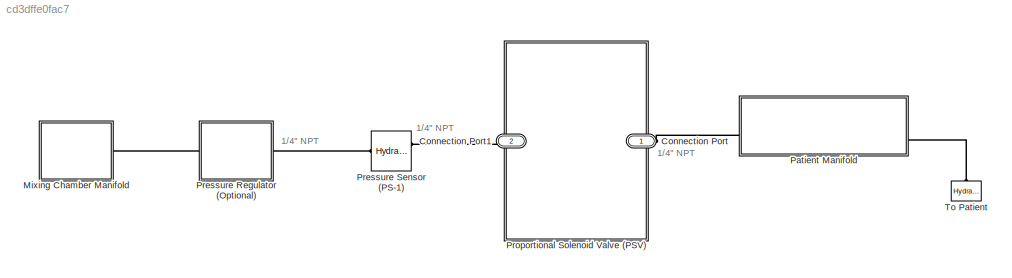
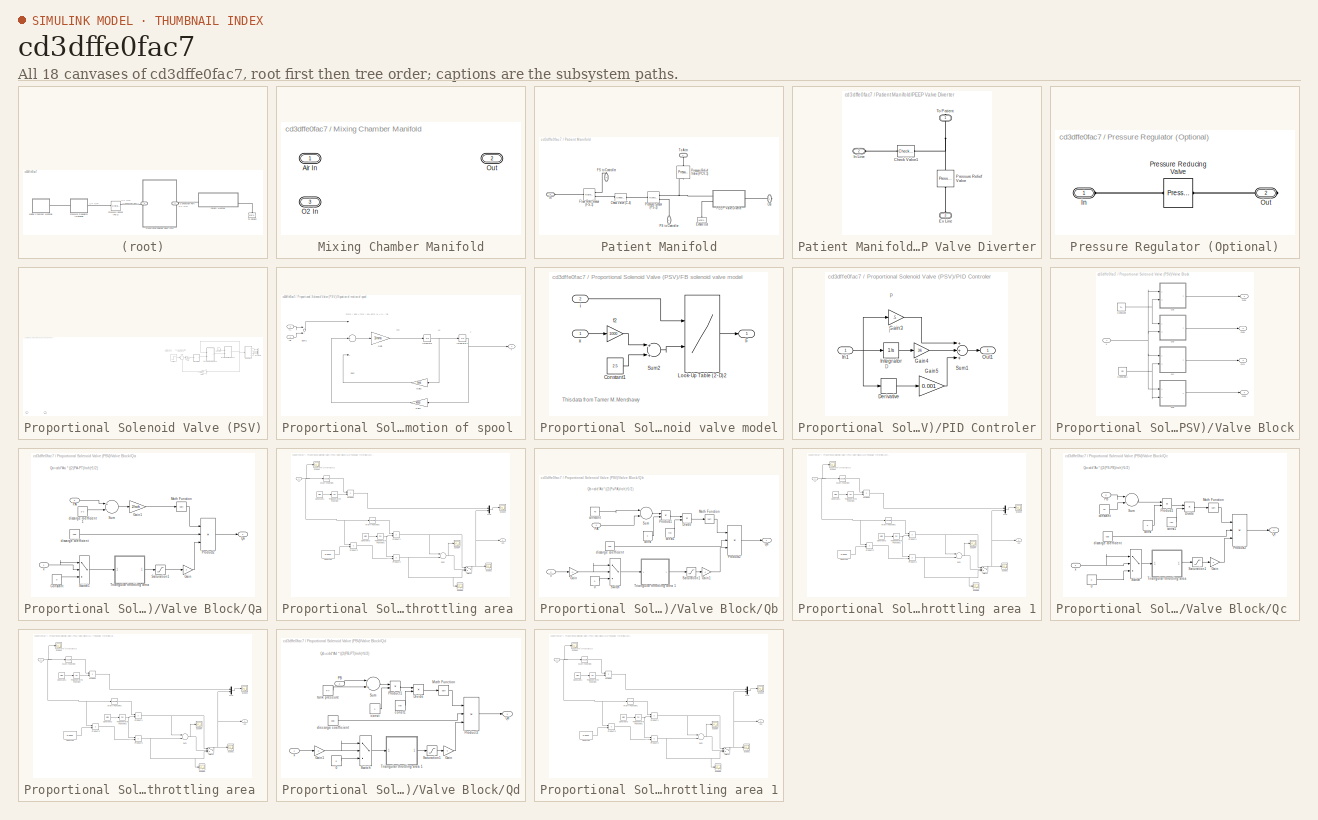
[diagram: thumbnail index - all 18 canvases of the model, root first then tree order]
MODEL slx_cd3dffe0fac7
KIND model
CONFIG AbsTol = auto
CONFIG FixedStep = auto
CONFIG MaxStep = auto
CONFIG MinStep = auto
CONFIG RelTol = 1e-3
CONFIG SampleTimeConstraint = Unconstrained
CONFIG Solver = VariableStepAuto
CONFIG SolverMode = Auto
CONFIG SolverName = VariableStepAuto
CONFIG StartTime = 0.0
CONFIG StopTime = 10.0
BLOCK [PMIOPort] Connection Port
  Port = 1
  Side = Left
BLOCK [PMIOPort] Connection Port1
  Port = 2
  Side = Right
BLOCK [SubSystem] Mixing Chamber Manifold
  Ports = [0, 0, 0, 0, 0, 2, 1]
  RequestExecContextInheritance = off
  Variant = off
BLOCK [PMIOPort] Mixing Chamber Manifold/Air In
  Port = 1
  Side = Left
BLOCK [PMIOPort] Mixing Chamber Manifold/O2 In
  Port = 3
  Side = Left
BLOCK [PMIOPort] Mixing Chamber Manifold/Out
  Port = 2
  Side = Right
BLOCK [SubSystem] Patient Manifold
  Ports = [0, 0, 0, 0, 0, 2, 3]
  RequestExecContextInheritance = off
  Variant = off
BLOCK [Reference] Patient Manifold/Check Valve (C-4)  REF=sh_lib/Valves/Directional Valves/Check Valve
  Ports = [0, 0, 0, 0, 0, 1, 1]
  SourceBlock = sh_lib/Valves/Directional Valves/Check Valve
  SourceType = Check Valve
BLOCK [Reference] Patient Manifold/Exhale Out  REF=fl_lib/Hydraulic/Hydraulic Elements/Hydraulic Reference
  Ports = [0, 0, 0, 0, 0, 1]
  SourceBlock = fl_lib/Hydraulic/Hydraulic Elements/Hydraulic Reference
  SourceType = Hydraulic Reference
BLOCK [PMIOPort] Patient Manifold/FS to Controller
  Port = 2
  Side = Right
BLOCK [Reference] Patient Manifold/Flow Rate Sensor (FS-1)  REF=fl_lib/Hydraulic/Hydraulic Sensors/Hydraulic Flow Rate
Sensor
  Ports = [0, 0, 0, 0, 0, 1, 2]
  SourceBlock = fl_lib/Hydraulic/Hydraulic Sensors/Hydraulic Flow Rate\nSensor
  SourceType = Hydraulic Flow Rate\nSensor
BLOCK [PMIOPort] Patient Manifold/In
  Port = 3
  Side = Left
BLOCK [PMIOPort] Patient Manifold/Out
  Port = 5
  Side = Right
BLOCK [SubSystem] Patient Manifold/PEEP Valve Diverter
  Ports = [0, 0, 0, 0, 0, 2, 1]
  RequestExecContextInheritance = off
  Variant = off
BLOCK [Reference] Patient Manifold/PEEP Valve Diverter/Check Valve1  REF=sh_lib/Valves/Directional Valves/Check Valve
  Ports = [0, 0, 0, 0, 0, 1, 1]
  SourceBlock = sh_lib/Valves/Directional Valves/Check Valve
  SourceType = Check Valve
BLOCK [PMIOPort] Patient Manifold/PEEP Valve Diverter/Ex Line
  Port = 3
  Side = Left
BLOCK [PMIOPort] Patient Manifold/PEEP Valve Diverter/In Line
  Port = 2
  Side = Left
BLOCK [Reference] Patient Manifold/PEEP Valve Diverter/Pressure Relief Valve  REF=sh_lib/Valves/Pressure Control
Valves/Pressure Relief
Valve
  Ports = [0, 0, 0, 0, 0, 1, 1]
  SourceBlock = sh_lib/Valves/Pressure Control\nValves/Pressure Relief\nValve
  SourceType = Pressure Relief\nValve
BLOCK [PMIOPort] Patient Manifold/PEEP Valve Diverter/To Patient
  Port = 1
  Side = Right
BLOCK [PMIOPort] Patient Manifold/PS to Controller
  Port = 4
  Side = Right
BLOCK [Reference] Patient Manifold/Pressure Relief Valve (PCV-1)  REF=sh_lib/Valves/Pressure Control
Valves/Pressure Relief
Valve
  Ports = [0, 0, 0, 0, 0, 1, 1]
  SourceBlock = sh_lib/Valves/Pressure Control\nValves/Pressure Relief\nValve
  SourceType = Pressure Relief\nValve
BLOCK [Reference] Patient Manifold/Pressure Sensor (PS-2)  REF=fl_lib/Hydraulic/Hydraulic Sensors/Hydraulic Pressure
Sensor
  Ports = [0, 0, 0, 0, 0, 1, 2]
  SourceBlock = fl_lib/Hydraulic/Hydraulic Sensors/Hydraulic Pressure\nSensor
  SourceType = Hydraulic Pressure\nSensor
BLOCK [PMIOPort] Patient Manifold/To Atm
  Port = 1
  Side = Left
BLOCK [SubSystem] Pressure Regulator (Optional)
  Ports = [0, 0, 0, 0, 0, 1, 1]
  RequestExecContextInheritance = off
  Variant = off
BLOCK [PMIOPort] Pressure Regulator (Optional)/In
  Port = 1
  Side = Left
BLOCK [PMIOPort] Pressure Regulator (Optional)/Out
  Port = 2
  Side = Right
BLOCK [Reference] Pressure Regulator (Optional)/Pressure Reducing Valve  REF=sh_lib/Valves/Pressure Control
Valves/Pressure Reducing
Valve
  Ports = [0, 0, 0, 0, 0, 1, 1]
  SourceBlock = sh_lib/Valves/Pressure Control\nValves/Pressure Reducing\nValve
  SourceType = Pressure Reducing\nValve
BLOCK [Reference] Pressure Sensor (PS-1)  REF=fl_lib/Hydraulic/Hydraulic Sensors/Hydraulic Pressure
Sensor
  Ports = [0, 0, 0, 0, 0, 1, 2]
  SourceBlock = fl_lib/Hydraulic/Hydraulic Sensors/Hydraulic Pressure\nSensor
  SourceType = Hydraulic Pressure\nSensor
BLOCK [SubSystem] Proportional Solenoid Valve (PSV)
  Ports = [1, 1]
  RequestExecContextInheritance = off
  Variant = off
  VariantControl = Variant1
BLOCK [BusCreator] Proportional Solenoid Valve (PSV)/Bus Creator
  DisplayOption = bar
  InheritFromInputs = on
  Inputs = 4
  Ports = [4, 1]
BLOCK [Constant] Proportional Solenoid Valve (PSV)/Constant
  Value = 0
BLOCK [SubSystem] Proportional Solenoid Valve (PSV)/Equation of motion of spool 
  Ports = [2, 1]
  RequestExecContextInheritance = off
  Variant = off
BLOCK [Gain] Proportional Solenoid Valve (PSV)/Equation of motion of spool /Gain
  Gain = 1/mms
  OutDataTypeStr = Inherit: Inherit via internal rule
  ParamDataTypeStr = Inherit: Inherit via internal rule
  SaturateOnIntegerOverflow = off
BLOCK [Gain] Proportional Solenoid Valve (PSV)/Equation of motion of spool /Gain1
  Gain = kms
  OutDataTypeStr = Inherit: Inherit via internal rule
  ParamDataTypeStr = Inherit: Inherit via internal rule
  SaturateOnIntegerOverflow = off
BLOCK [Gain] Proportional Solenoid Valve (PSV)/Equation of motion of spool /Gain2
  Gain = fms
  OutDataTypeStr = Inherit: Inherit via internal rule
  ParamDataTypeStr = Inherit: Inherit via internal rule
  SaturateOnIntegerOverflow = off
BLOCK [Integrator] Proportional Solenoid Valve (PSV)/Equation of motion of spool /Integrator
  Ports = [1, 1]
BLOCK [Integrator] Proportional Solenoid Valve (PSV)/Equation of motion of spool /Integrator1
  Ports = [1, 1]
BLOCK [Sum] Proportional Solenoid Valve (PSV)/Equation of motion of spool /Sum
  InputSameDT = off
  Inputs = |+--
  OutDataTypeStr = Inherit: Inherit via internal rule
  Ports = [3, 1]
  SaturateOnIntegerOverflow = off
BLOCK [Sum] Proportional Solenoid Valve (PSV)/Equation of motion of spool /Sum1
  InputSameDT = off
  Inputs = |+-
  OutDataTypeStr = Inherit: Inherit via internal rule
  Ports = [2, 1]
  SaturateOnIntegerOverflow = off
BLOCK [Inport] Proportional Solenoid Valve (PSV)/Equation of motion of spool /fA
  IconDisplay = Port number
  Port = 2
BLOCK [Inport] Proportional Solenoid Valve (PSV)/Equation of motion of spool /fB
  IconDisplay = Port number
BLOCK [Outport] Proportional Solenoid Valve (PSV)/Equation of motion of spool /x
  IconDisplay = Port number
BLOCK [SubSystem] Proportional Solenoid Valve (PSV)/FB solenoid valve model
  Ports = [2, 1]
  RequestExecContextInheritance = off
  Variant = off
BLOCK [Constant] Proportional Solenoid Valve (PSV)/FB solenoid valve model/Constant1
  Value = 2.5
BLOCK [Outport] Proportional Solenoid Valve (PSV)/FB solenoid valve model/F
  IconDisplay = Port number
BLOCK [Lookup2D] Proportional Solenoid Valve (PSV)/FB solenoid valve model/Look-Up Table (2-D)2
  ColumnIndex = [1 2 3 4 5]
  InputSameDT = off
  RowIndex = [0.1 0.15 0.2 0.25 0.3 0.35 0.4 0.45 0.5 0.55 0.6 0.65 0.7 0.75 0.8]
  Table = [0 0 0 0 0; 0 0 0 0 0; 0 0 3.32 5.39 11.27; 0.31 1.65 6.12 11.64 15.98; 1.44 3.06 9.05 17.58 20.43; 2.56 4.23 11.14 21.53 24.09; 4.03 5.41 13.45 25.17 28.62; 5.39 7.12 16.87 28.75 32.52; 6.3 8.74 19.51 32.25 36.91; 7.77 10.31 21.9 35.86 40.36; 8.82 11.95 24.54 39.27 44.63; 9.73 13.81 27.1 43.06 48.68; 11.06 15.54 29.66 46.33 52.61; 12.84 17.58 31.52 49.05 55.75; 14.15 19.85 32.8 51.82 59.93]
BLOCK [Sum] Proportional Solenoid Valve (PSV)/FB solenoid valve model/Sum2
  InputSameDT = off
  OutDataTypeStr = Inherit: Inherit via internal rule
  Ports = [2, 1]
BLOCK [Gain] Proportional Solenoid Valve (PSV)/FB solenoid valve model/f2
  Gain = 1000
BLOCK [Inport] Proportional Solenoid Valve (PSV)/FB solenoid valve model/i
  IconDisplay = Port number
  Port = 2
BLOCK [Inport] Proportional Solenoid Valve (PSV)/FB solenoid valve model/x
  IconDisplay = Port number
BLOCK [Gain] Proportional Solenoid Valve (PSV)/Gain
  Gain = .15
  OutDataTypeStr = Inherit: Inherit via internal rule
  ParamDataTypeStr = Inherit: Inherit via internal rule
  SaturateOnIntegerOverflow = off
BLOCK [Gain] Proportional Solenoid Valve (PSV)/Gain1
  Gain = 2290
  OutDataTypeStr = Inherit: Inherit via internal rule
  ParamDataTypeStr = Inherit: Inherit via internal rule
  SaturateOnIntegerOverflow = off
BLOCK [Inport] Proportional Solenoid Valve (PSV)/In1
  IconDisplay = Port number
BLOCK [Outport] Proportional Solenoid Valve (PSV)/Out1
  IconDisplay = Port number
BLOCK [SubSystem] Proportional Solenoid Valve (PSV)/PID Controler
  Ports = [1, 1]
  RequestExecContextInheritance = off
  Variant = off
BLOCK [Derivative] Proportional Solenoid Valve (PSV)/PID Controler/Derivative
BLOCK [Gain] Proportional Solenoid Valve (PSV)/PID Controler/Gain3
  Gain = .5
  OutDataTypeStr = Inherit: Inherit via internal rule
  ParamDataTypeStr = Inherit: Inherit via internal rule
  SaturateOnIntegerOverflow = off
BLOCK [Gain] Proportional Solenoid Valve (PSV)/PID Controler/Gain4
  Gain = 36
  OutDataTypeStr = Inherit: Inherit via internal rule
  ParamDataTypeStr = Inherit: Inherit via internal rule
  SaturateOnIntegerOverflow = off
BLOCK [Gain] Proportional Solenoid Valve (PSV)/PID Controler/Gain5
  Gain = 0.001
  OutDataTypeStr = Inherit: Inherit via internal rule
  ParamDataTypeStr = Inherit: Inherit via internal rule
  SaturateOnIntegerOverflow = off
BLOCK [Inport] Proportional Solenoid Valve (PSV)/PID Controler/In1
  IconDisplay = Port number
BLOCK [Integrator] Proportional Solenoid Valve (PSV)/PID Controler/Integrator
  Ports = [1, 1]
BLOCK [Outport] Proportional Solenoid Valve (PSV)/PID Controler/Out1
  IconDisplay = Port number
BLOCK [Sum] Proportional Solenoid Valve (PSV)/PID Controler/Sum1
  InputSameDT = off
  Inputs = +++
  OutDataTypeStr = Inherit: Inherit via internal rule
  Ports = [3, 1]
  SaturateOnIntegerOverflow = off
BLOCK [Step] Proportional Solenoid Valve (PSV)/Step
  After = 4.8
  SampleTime = 0
  Time = 0
BLOCK [Sum] Proportional Solenoid Valve (PSV)/Sum
  IconShape = round
  InputSameDT = off
  Inputs = |+-
  OutDataTypeStr = Inherit: Inherit via internal rule
  Ports = [2, 1]
  SaturateOnIntegerOverflow = off
BLOCK [SubSystem] Proportional Solenoid Valve (PSV)/Valve Block
  Ports = [1, 4]
  RequestExecContextInheritance = off
  Variant = off
BLOCK [Constant] Proportional Solenoid Valve (PSV)/Valve Block/Constant
  Value = PA
BLOCK [Constant] Proportional Solenoid Valve (PSV)/Valve Block/Constant1
  Value = PB
BLOCK [SubSystem] Proportional Solenoid Valve (PSV)/Valve Block/Qa
  Ports = [2, 1]
  RequestExecContextInheritance = off
  Variant = off
BLOCK [Constant] Proportional Solenoid Valve (PSV)/Valve Block/Qa/Constant
  Value = 0
BLOCK [Gain] Proportional Solenoid Valve (PSV)/Valve Block/Qa/Gain
  Gain = 4
  OutDataTypeStr = Inherit: Inherit via internal rule
  ParamDataTypeStr = Inherit: Inherit via internal rule
  SaturateOnIntegerOverflow = off
BLOCK [Gain] Proportional Solenoid Valve (PSV)/Valve Block/Qa/Gain1
  Gain = 2/roh
  OutDataTypeStr = Inherit: Inherit via internal rule
  ParamDataTypeStr = Inherit: Inherit via internal rule
  SaturateOnIntegerOverflow = off
BLOCK [Math] Proportional Solenoid Valve (PSV)/Valve Block/Qa/Math Function
  Operator = sqrt
  Ports = [1, 1]
BLOCK [Inport] Proportional Solenoid Valve (PSV)/Valve Block/Qa/PA
  IconDisplay = Port number
  Port = 2
BLOCK [Product] Proportional Solenoid Valve (PSV)/Valve Block/Qa/Product2
  InputSameDT = off
  Inputs = 3
  OutDataTypeStr = Inherit: Inherit via internal rule
  Ports = [3, 1]
  SaturateOnIntegerOverflow = off
BLOCK [Outport] Proportional Solenoid Valve (PSV)/Valve Block/Qa/Qa
  IconDisplay = Port number
BLOCK [Saturate] Proportional Solenoid Valve (PSV)/Valve Block/Qa/Saturation1
  InputPortMap = u0
  LowerLimit = cl
  Ports = [1, 1]
  UpperLimit = 1
BLOCK [Sum] Proportional Solenoid Valve (PSV)/Valve Block/Qa/Sum
  InputSameDT = off
  Inputs = +-
  OutDataTypeStr = Inherit: Inherit via internal rule
  Ports = [2, 1]
  SaturateOnIntegerOverflow = off
BLOCK [Switch] Proportional Solenoid Valve (PSV)/Valve Block/Qa/Switch1
  InputSameDT = off
  SaturateOnIntegerOverflow = off
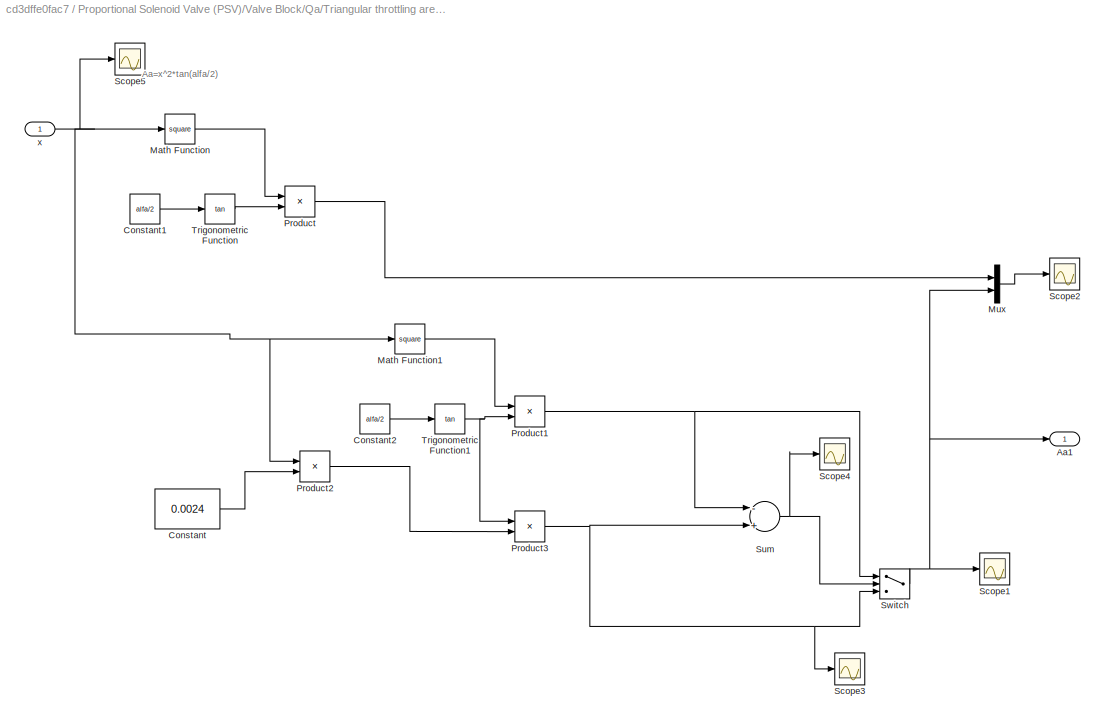
BLOCK [SubSystem] Proportional Solenoid Valve (PSV)/Valve Block/Qa/Triangular throttling area 
  Ports = [1, 1]
  RequestExecContextInheritance = off
  Variant = off
BLOCK [Outport] Proportional Solenoid Valve (PSV)/Valve Block/Qa/Triangular throttling area /Aa1
  IconDisplay = Port number
BLOCK [Constant] Proportional Solenoid Valve (PSV)/Valve Block/Qa/Triangular throttling area /Constant
  Value = 0.0024
BLOCK [Constant] Proportional Solenoid Valve (PSV)/Valve Block/Qa/Triangular throttling area /Constant1
  Value = alfa/2
BLOCK [Constant] Proportional Solenoid Valve (PSV)/Valve Block/Qa/Triangular throttling area /Constant2
  Value = alfa/2
BLOCK [Math] Proportional Solenoid Valve (PSV)/Valve Block/Qa/Triangular throttling area /Math Function
  Operator = square
  Ports = [1, 1]
BLOCK [Math] Proportional Solenoid Valve (PSV)/Valve Block/Qa/Triangular throttling area /Math Function1
  Operator = square
  Ports = [1, 1]
BLOCK [Mux] Proportional Solenoid Valve (PSV)/Valve Block/Qa/Triangular throttling area /Mux
  DisplayOption = bar
  Inputs = 2
  Ports = [2, 1]
BLOCK [Product] Proportional Solenoid Valve (PSV)/Valve Block/Qa/Triangular throttling area /Product
  InputSameDT = off
  OutDataTypeStr = Inherit: Inherit via internal rule
  Ports = [2, 1]
  SaturateOnIntegerOverflow = off
BLOCK [Product] Proportional Solenoid Valve (PSV)/Valve Block/Qa/Triangular throttling area /Product1
  InputSameDT = off
  OutDataTypeStr = Inherit: Inherit via internal rule
  Ports = [2, 1]
  SaturateOnIntegerOverflow = off
BLOCK [Product] Proportional Solenoid Valve (PSV)/Valve Block/Qa/Triangular throttling area /Product2
  InputSameDT = off
  OutDataTypeStr = Inherit: Inherit via internal rule
  Ports = [2, 1]
  SaturateOnIntegerOverflow = off
BLOCK [Product] Proportional Solenoid Valve (PSV)/Valve Block/Qa/Triangular throttling area /Product3
  InputSameDT = off
  OutDataTypeStr = Inherit: Inherit via internal rule
  Ports = [2, 1]
  SaturateOnIntegerOverflow = off
BLOCK [Scope] Proportional Solenoid Valve (PSV)/Valve Block/Qa/Triangular throttling area /Scope1
  Ports = [1]
  ScopeSpecificationString = C++SS(StrPVP('Location','[5, 56, 1285, 803]'),StrPVP('Open','off'),MxPVP('AxesTitles',24,'struct(''axes1'',''%<SignalLabel>'')'),StrPVP('SaveName','ScopeData13'),StrPVP('DataFormat','StructureWithTime'),StrPVP('BlockParamSampleTime','0'),StrPVP('LimitDataPoints','on'),StrPVP('Decimation','1'),StrPVP('BlockParamSampleInput','off'))  <repeated x4 — deduplicated; at blocks: Scope1>
BLOCK [Scope] Proportional Solenoid Valve (PSV)/Valve Block/Qa/Triangular throttling area /Scope2
  Ports = [1]
  ScopeSpecificationString = C++SS(StrPVP('Location','[5, 56, 1285, 803]'),StrPVP('Open','off'),StrPVP('ZoomMode','yonly'),MxPVP('AxesTitles',24,'struct(''axes1'',''%<SignalLabel>'')'),StrPVP('SaveName','ScopeData12'),StrPVP('DataFormat','StructureWithTime'),StrPVP('BlockParamSampleTime','0'),StrPVP('LimitDataPoints','on'),StrPVP('Decimation','1'),StrPVP('BlockParamSampleInput','off'))  <repeated x4 — deduplicated; at blocks: Scope2>
BLOCK [Scope] Proportional Solenoid Valve (PSV)/Valve Block/Qa/Triangular throttling area /Scope3
  Ports = [1]
  ScopeSpecificationString = C++SS(StrPVP('Location','[5, 56, 1285, 803]'),StrPVP('Open','off'),MxPVP('AxesTitles',24,'struct(''axes1'',''%<SignalLabel>'')'),StrPVP('SaveName','ScopeData9'),StrPVP('DataFormat','StructureWithTime'),StrPVP('BlockParamSampleTime','0'),StrPVP('LimitDataPoints','on'),StrPVP('Decimation','1'),StrPVP('BlockParamSampleInput','off'))  <repeated x4 — deduplicated; at blocks: Scope3>
BLOCK [Scope] Proportional Solenoid Valve (PSV)/Valve Block/Qa/Triangular throttling area /Scope4
  Ports = [1]
  ScopeSpecificationString = C++SS(StrPVP('Location','[5, 56, 1285, 803]'),StrPVP('Open','off'),MxPVP('AxesTitles',24,'struct(''axes1'',''%<SignalLabel>'')'),StrPVP('YMin','5e-008'),StrPVP('YMax','5.25e-007'),StrPVP('SaveName','ScopeData18'),StrPVP('DataFormat','StructureWithTime'),StrPVP('BlockParamSampleTime','0'),StrPVP('LimitDataPoints','on'),StrPVP('Decimation','1'),StrPVP('BlockParamSampleInput','off'))  <repeated x4 — deduplicated; at blocks: Scope4>
BLOCK [Scope] Proportional Solenoid Valve (PSV)/Valve Block/Qa/Triangular throttling area /Scope5
  Ports = [1]
  ScopeSpecificationString = C++SS(StrPVP('Location','[5, 56, 1285, 803]'),StrPVP('Open','off'),StrPVP('ZoomMode','yonly'),MxPVP('AxesTitles',24,'struct(''axes1'',''%<SignalLabel>'')'),StrPVP('SaveName','ScopeData19'),StrPVP('DataFormat','StructureWithTime'),StrPVP('BlockParamSampleTime','0'),StrPVP('LimitDataPoints','on'),StrPVP('Decimation','1'),StrPVP('BlockParamSampleInput','off'))  <repeated x4 — deduplicated; at blocks: Scope5>
BLOCK [Sum] Proportional Solenoid Valve (PSV)/Valve Block/Qa/Triangular throttling area /Sum
  InputSameDT = off
  Inputs = -+
  OutDataTypeStr = Inherit: Inherit via internal rule
  Ports = [2, 1]
  SaturateOnIntegerOverflow = off
BLOCK [Switch] Proportional Solenoid Valve (PSV)/Valve Block/Qa/Triangular throttling area /Switch
  InputSameDT = off
  SaturateOnIntegerOverflow = off
BLOCK [Trigonometry] Proportional Solenoid Valve (PSV)/Valve Block/Qa/Triangular throttling area /Trigonometric Function
  Operator = tan
  Ports = [1, 1]
BLOCK [Trigonometry] Proportional Solenoid Valve (PSV)/Valve Block/Qa/Triangular throttling area /Trigonometric Function1
  Operator = tan
  Ports = [1, 1]
BLOCK [Inport] Proportional Solenoid Valve (PSV)/Valve Block/Qa/Triangular throttling area /x
  IconDisplay = Port number
BLOCK [Constant] Proportional Solenoid Valve (PSV)/Valve Block/Qa/discarge coefficient
  Value = cdd
BLOCK [Constant] Proportional Solenoid Valve (PSV)/Valve Block/Qa/discarge coefficient1
  Value = PT
BLOCK [Inport] Proportional Solenoid Valve (PSV)/Valve Block/Qa/x
  IconDisplay = Port number
BLOCK [Outport] Proportional Solenoid Valve (PSV)/Valve Block/Qa1
  IconDisplay = Port number
BLOCK [SubSystem] Proportional Solenoid Valve (PSV)/Valve Block/Qb
  Ports = [2, 1]
  RequestExecContextInheritance = off
  Variant = off
BLOCK [Constant] Proportional Solenoid Valve (PSV)/Valve Block/Qb/0
  Value = 0
BLOCK [Product] Proportional Solenoid Valve (PSV)/Valve Block/Qb/Divide
  InputSameDT = off
  Inputs = */
  OutDataTypeStr = Inherit: Inherit via internal rule
  Ports = [2, 1]
  RndMeth = Floor
  SaturateOnIntegerOverflow = off
BLOCK [Gain] Proportional Solenoid Valve (PSV)/Valve Block/Qb/Gain
  Gain = -1
  OutDataTypeStr = Inherit: Inherit via internal rule
  ParamDataTypeStr = Inherit: Inherit via internal rule
  SaturateOnIntegerOverflow = off
BLOCK [Gain] Proportional Solenoid Valve (PSV)/Valve Block/Qb/Gain1
  Gain = 4
  OutDataTypeStr = Inherit: Inherit via internal rule
  ParamDataTypeStr = Inherit: Inherit via internal rule
  SaturateOnIntegerOverflow = off
BLOCK [Math] Proportional Solenoid Valve (PSV)/Valve Block/Qb/Math Function
  Operator = sqrt
  Ports = [1, 1]
BLOCK [Inport] Proportional Solenoid Valve (PSV)/Valve Block/Qb/PA
  IconDisplay = Port number
BLOCK [Product] Proportional Solenoid Valve (PSV)/Valve Block/Qb/Product1
  InputSameDT = off
  OutDataTypeStr = Inherit: Inherit via internal rule
  Ports = [2, 1]
  SaturateOnIntegerOverflow = off
BLOCK [Product] Proportional Solenoid Valve (PSV)/Valve Block/Qb/Product2
  InputSameDT = off
  Inputs = 3
  OutDataTypeStr = Inherit: Inherit via internal rule
  Ports = [3, 1]
  SaturateOnIntegerOverflow = off
BLOCK [Outport] Proportional Solenoid Valve (PSV)/Valve Block/Qb/Qb
  IconDisplay = Port number
BLOCK [Saturate] Proportional Solenoid Valve (PSV)/Valve Block/Qb/Saturation1
  InputPortMap = u0
  LowerLimit = cl
  Ports = [1, 1]
BLOCK [Sum] Proportional Solenoid Valve (PSV)/Valve Block/Qb/Sum
  InputSameDT = off
  Inputs = |+-
  OutDataTypeStr = Inherit: Inherit via internal rule
  Ports = [2, 1]
  SaturateOnIntegerOverflow = off
BLOCK [Switch] Proportional Solenoid Valve (PSV)/Valve Block/Qb/Switch
  InputSameDT = off
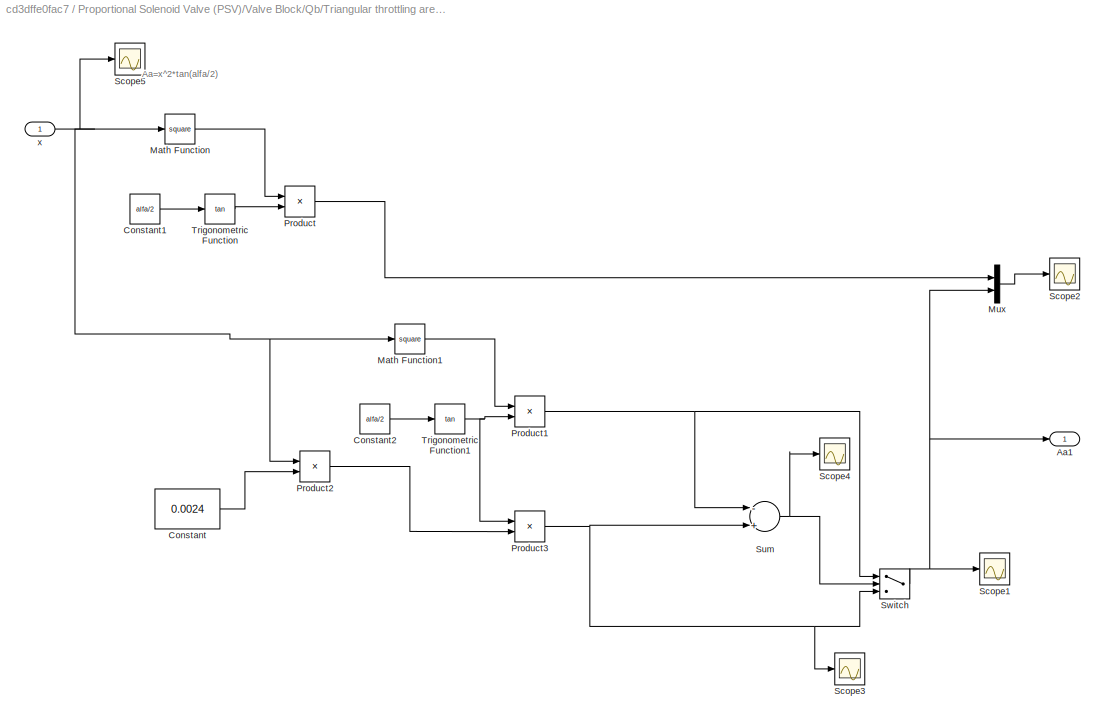
BLOCK [SubSystem] Proportional Solenoid Valve (PSV)/Valve Block/Qb/Triangular throttling area 1
  Ports = [1, 1]
  RequestExecContextInheritance = off
  Variant = off
BLOCK [Outport] Proportional Solenoid Valve (PSV)/Valve Block/Qb/Triangular throttling area 1/Aa1
  IconDisplay = Port number
BLOCK [Constant] Proportional Solenoid Valve (PSV)/Valve Block/Qb/Triangular throttling area 1/Constant
  Value = 0.0024
BLOCK [Constant] Proportional Solenoid Valve (PSV)/Valve Block/Qb/Triangular throttling area 1/Constant1
  Value = alfa/2
BLOCK [Constant] Proportional Solenoid Valve (PSV)/Valve Block/Qb/Triangular throttling area 1/Constant2
  Value = alfa/2
BLOCK [Math] Proportional Solenoid Valve (PSV)/Valve Block/Qb/Triangular throttling area 1/Math Function
  Operator = square
  Ports = [1, 1]
BLOCK [Math] Proportional Solenoid Valve (PSV)/Valve Block/Qb/Triangular throttling area 1/Math Function1
  Operator = square
  Ports = [1, 1]
BLOCK [Mux] Proportional Solenoid Valve (PSV)/Valve Block/Qb/Triangular throttling area 1/Mux
  DisplayOption = bar
  Inputs = 2
  Ports = [2, 1]
BLOCK [Product] Proportional Solenoid Valve (PSV)/Valve Block/Qb/Triangular throttling area 1/Product
  InputSameDT = off
  OutDataTypeStr = Inherit: Inherit via internal rule
  Ports = [2, 1]
  SaturateOnIntegerOverflow = off
BLOCK [Product] Proportional Solenoid Valve (PSV)/Valve Block/Qb/Triangular throttling area 1/Product1
  InputSameDT = off
  OutDataTypeStr = Inherit: Inherit via internal rule
  Ports = [2, 1]
  SaturateOnIntegerOverflow = off
BLOCK [Product] Proportional Solenoid Valve (PSV)/Valve Block/Qb/Triangular throttling area 1/Product2
  InputSameDT = off
  OutDataTypeStr = Inherit: Inherit via internal rule
  Ports = [2, 1]
  SaturateOnIntegerOverflow = off
BLOCK [Product] Proportional Solenoid Valve (PSV)/Valve Block/Qb/Triangular throttling area 1/Product3
  InputSameDT = off
  OutDataTypeStr = Inherit: Inherit via internal rule
  Ports = [2, 1]
  SaturateOnIntegerOverflow = off
BLOCK [Scope] Proportional Solenoid Valve (PSV)/Valve Block/Qb/Triangular throttling area 1/Scope1
  Ports = [1]
BLOCK [Scope] Proportional Solenoid Valve (PSV)/Valve Block/Qb/Triangular throttling area 1/Scope2
  Ports = [1]
BLOCK [Scope] Proportional Solenoid Valve (PSV)/Valve Block/Qb/Triangular throttling area 1/Scope3
  Ports = [1]
BLOCK [Scope] Proportional Solenoid Valve (PSV)/Valve Block/Qb/Triangular throttling area 1/Scope4
  Ports = [1]
BLOCK [Scope] Proportional Solenoid Valve (PSV)/Valve Block/Qb/Triangular throttling area 1/Scope5
  Ports = [1]
BLOCK [Sum] Proportional Solenoid Valve (PSV)/Valve Block/Qb/Triangular throttling area 1/Sum
  InputSameDT = off
  Inputs = -+
  OutDataTypeStr = Inherit: Inherit via internal rule
  Ports = [2, 1]
  SaturateOnIntegerOverflow = off
BLOCK [Switch] Proportional Solenoid Valve (PSV)/Valve Block/Qb/Triangular throttling area 1/Switch
  InputSameDT = off
  SaturateOnIntegerOverflow = off
BLOCK [Trigonometry] Proportional Solenoid Valve (PSV)/Valve Block/Qb/Triangular throttling area 1/Trigonometric Function
  Operator = tan
  Ports = [1, 1]
BLOCK [Trigonometry] Proportional Solenoid Valve (PSV)/Valve Block/Qb/Triangular throttling area 1/Trigonometric Function1
  Operator = tan
  Ports = [1, 1]
BLOCK [Inport] Proportional Solenoid Valve (PSV)/Valve Block/Qb/Triangular throttling area 1/x
  IconDisplay = Port number
BLOCK [Constant] Proportional Solenoid Valve (PSV)/Valve Block/Qb/const
  Value = 2
BLOCK [Constant] Proportional Solenoid Valve (PSV)/Valve Block/Qb/const1
  Value = roh
BLOCK [Constant] Proportional Solenoid Valve (PSV)/Valve Block/Qb/constant
  Value = Ps
BLOCK [Constant] Proportional Solenoid Valve (PSV)/Valve Block/Qb/discarge coefficient
  Value = cdd
BLOCK [Inport] Proportional Solenoid Valve (PSV)/Valve Block/Qb/x
  IconDisplay = Port number
  Port = 2
BLOCK [Outport] Proportional Solenoid Valve (PSV)/Valve Block/Qb1
  IconDisplay = Port number
  Port = 2
BLOCK [SubSystem] Proportional Solenoid Valve (PSV)/Valve Block/Qc 
  Ports = [2, 1]
  RequestExecContextInheritance = off
  Variant = off
BLOCK [Constant] Proportional Solenoid Valve (PSV)/Valve Block/Qc /0
  Value = 0
BLOCK [Product] Proportional Solenoid Valve (PSV)/Valve Block/Qc /Divide
  InputSameDT = off
  Inputs = */
  OutDataTypeStr = Inherit: Inherit via internal rule
  Ports = [2, 1]
  RndMeth = Floor
  SaturateOnIntegerOverflow = off
BLOCK [Gain] Proportional Solenoid Valve (PSV)/Valve Block/Qc /Gain
  Gain = 4
  OutDataTypeStr = Inherit: Inherit via internal rule
  ParamDataTypeStr = Inherit: Inherit via internal rule
  SaturateOnIntegerOverflow = off
BLOCK [Math] Proportional Solenoid Valve (PSV)/Valve Block/Qc /Math Function
  Operator = sqrt
  Ports = [1, 1]
BLOCK [Inport] Proportional Solenoid Valve (PSV)/Valve Block/Qc /PB
  IconDisplay = Port number
  Port = 2
BLOCK [Product] Proportional Solenoid Valve (PSV)/Valve Block/Qc /Product1
  InputSameDT = off
  OutDataTypeStr = Inherit: Inherit via internal rule
  Ports = [2, 1]
  SaturateOnIntegerOverflow = off
BLOCK [Product] Proportional Solenoid Valve (PSV)/Valve Block/Qc /Product2
  InputSameDT = off
  Inputs = 3
  OutDataTypeStr = Inherit: Inherit via internal rule
  Ports = [3, 1]
  SaturateOnIntegerOverflow = off
BLOCK [Outport] Proportional Solenoid Valve (PSV)/Valve Block/Qc /Qc
  IconDisplay = Port number
BLOCK [Saturate] Proportional Solenoid Valve (PSV)/Valve Block/Qc /Saturation1
  InputPortMap = u0
  LowerLimit = cl
  Ports = [1, 1]
  UpperLimit = 2
BLOCK [Sum] Proportional Solenoid Valve (PSV)/Valve Block/Qc /Sum
  InputSameDT = off
  Inputs = |-+
  OutDataTypeStr = Inherit: Inherit via internal rule
  Ports = [2, 1]
  SaturateOnIntegerOverflow = off
BLOCK [Switch] Proportional Solenoid Valve (PSV)/Valve Block/Qc /Switch
  InputSameDT = off
BLOCK [SubSystem] Proportional Solenoid Valve (PSV)/Valve Block/Qc /Triangular throttling area 
  Ports = [1, 1]
  RequestExecContextInheritance = off
  Variant = off
BLOCK [Outport] Proportional Solenoid Valve (PSV)/Valve Block/Qc /Triangular throttling area /Aa1
  IconDisplay = Port number
BLOCK [Constant] Proportional Solenoid Valve (PSV)/Valve Block/Qc /Triangular throttling area /Constant
  Value = 0.0024
BLOCK [Constant] Proportional Solenoid Valve (PSV)/Valve Block/Qc /Triangular throttling area /Constant1
  Value = alfa/2
BLOCK [Constant] Proportional Solenoid Valve (PSV)/Valve Block/Qc /Triangular throttling area /Constant2
  Value = alfa/2
BLOCK [Math] Proportional Solenoid Valve (PSV)/Valve Block/Qc /Triangular throttling area /Math Function
  Operator = square
  Ports = [1, 1]
BLOCK [Math] Proportional Solenoid Valve (PSV)/Valve Block/Qc /Triangular throttling area /Math Function1
  Operator = square
  Ports = [1, 1]
BLOCK [Mux] Proportional Solenoid Valve (PSV)/Valve Block/Qc /Triangular throttling area /Mux
  DisplayOption = bar
  Inputs = 2
  Ports = [2, 1]
BLOCK [Product] Proportional Solenoid Valve (PSV)/Valve Block/Qc /Triangular throttling area /Product
  InputSameDT = off
  OutDataTypeStr = Inherit: Inherit via internal rule
  Ports = [2, 1]
  SaturateOnIntegerOverflow = off
BLOCK [Product] Proportional Solenoid Valve (PSV)/Valve Block/Qc /Triangular throttling area /Product1
  InputSameDT = off
  OutDataTypeStr = Inherit: Inherit via internal rule
  Ports = [2, 1]
  SaturateOnIntegerOverflow = off
BLOCK [Product] Proportional Solenoid Valve (PSV)/Valve Block/Qc /Triangular throttling area /Product2
  InputSameDT = off
  OutDataTypeStr = Inherit: Inherit via internal rule
  Ports = [2, 1]
  SaturateOnIntegerOverflow = off
BLOCK [Product] Proportional Solenoid Valve (PSV)/Valve Block/Qc /Triangular throttling area /Product3
  InputSameDT = off
  OutDataTypeStr = Inherit: Inherit via internal rule
  Ports = [2, 1]
  SaturateOnIntegerOverflow = off
BLOCK [Scope] Proportional Solenoid Valve (PSV)/Valve Block/Qc /Triangular throttling area /Scope1
  Ports = [1]
BLOCK [Scope] Proportional Solenoid Valve (PSV)/Valve Block/Qc /Triangular throttling area /Scope2
  Ports = [1]
BLOCK [Scope] Proportional Solenoid Valve (PSV)/Valve Block/Qc /Triangular throttling area /Scope3
  Ports = [1]
BLOCK [Scope] Proportional Solenoid Valve (PSV)/Valve Block/Qc /Triangular throttling area /Scope4
  Ports = [1]
BLOCK [Scope] Proportional Solenoid Valve (PSV)/Valve Block/Qc /Triangular throttling area /Scope5
  Ports = [1]
BLOCK [Sum] Proportional Solenoid Valve (PSV)/Valve Block/Qc /Triangular throttling area /Sum
  InputSameDT = off
  Inputs = -+
  OutDataTypeStr = Inherit: Inherit via internal rule
  Ports = [2, 1]
  SaturateOnIntegerOverflow = off
BLOCK [Switch] Proportional Solenoid Valve (PSV)/Valve Block/Qc /Triangular throttling area /Switch
  InputSameDT = off
  SaturateOnIntegerOverflow = off
BLOCK [Trigonometry] Proportional Solenoid Valve (PSV)/Valve Block/Qc /Triangular throttling area /Trigonometric Function
  Operator = tan
  Ports = [1, 1]
BLOCK [Trigonometry] Proportional Solenoid Valve (PSV)/Valve Block/Qc /Triangular throttling area /Trigonometric Function1
  Operator = tan
  Ports = [1, 1]
BLOCK [Inport] Proportional Solenoid Valve (PSV)/Valve Block/Qc /Triangular throttling area /x
  IconDisplay = Port number
BLOCK [Constant] Proportional Solenoid Valve (PSV)/Valve Block/Qc /const
  Value = 2
BLOCK [Constant] Proportional Solenoid Valve (PSV)/Valve Block/Qc /const1
  Value = roh
BLOCK [Constant] Proportional Solenoid Valve (PSV)/Valve Block/Qc /constant
  Value = Ps
BLOCK [Constant] Proportional Solenoid Valve (PSV)/Valve Block/Qc /discarge coefficient
  Value = cdd
BLOCK [Inport] Proportional Solenoid Valve (PSV)/Valve Block/Qc /x
  IconDisplay = Port number
BLOCK [Outport] Proportional Solenoid Valve (PSV)/Valve Block/Qc1
  IconDisplay = Port number
  Port = 3
BLOCK [SubSystem] Proportional Solenoid Valve (PSV)/Valve Block/Qd
  Ports = [2, 1]
  RequestExecContextInheritance = off
  Variant = off
BLOCK [Constant] Proportional Solenoid Valve (PSV)/Valve Block/Qd/0
  Value = 0
BLOCK [Product] Proportional Solenoid Valve (PSV)/Valve Block/Qd/Divide
  InputSameDT = off
  Inputs = */
  OutDataTypeStr = Inherit: Inherit via internal rule
  Ports = [2, 1]
  RndMeth = Floor
  SaturateOnIntegerOverflow = off
BLOCK [Gain] Proportional Solenoid Valve (PSV)/Valve Block/Qd/Gain
  Gain = 4
  OutDataTypeStr = Inherit: Inherit via internal rule
  ParamDataTypeStr = Inherit: Inherit via internal rule
  SaturateOnIntegerOverflow = off
BLOCK [Gain] Proportional Solenoid Valve (PSV)/Valve Block/Qd/Gain1
  Gain = -1
  OutDataTypeStr = Inherit: Inherit via internal rule
  ParamDataTypeStr = Inherit: Inherit via internal rule
  SaturateOnIntegerOverflow = off
BLOCK [Math] Proportional Solenoid Valve (PSV)/Valve Block/Qd/Math Function
  Operator = sqrt
  Ports = [1, 1]
BLOCK [Inport] Proportional Solenoid Valve (PSV)/Valve Block/Qd/PB
  IconDisplay = Port number
  Port = 2
BLOCK [Product] Proportional Solenoid Valve (PSV)/Valve Block/Qd/Product1
  InputSameDT = off
  OutDataTypeStr = Inherit: Inherit via internal rule
  Ports = [2, 1]
  SaturateOnIntegerOverflow = off
BLOCK [Product] Proportional Solenoid Valve (PSV)/Valve Block/Qd/Product2
  InputSameDT = off
  Inputs = 3
  OutDataTypeStr = Inherit: Inherit via internal rule
  Ports = [3, 1]
  SaturateOnIntegerOverflow = off
BLOCK [Outport] Proportional Solenoid Valve (PSV)/Valve Block/Qd/Qd
  IconDisplay = Port number
BLOCK [Saturate] Proportional Solenoid Valve (PSV)/Valve Block/Qd/Saturation1
  InputPortMap = u0
  LowerLimit = cl
  Ports = [1, 1]
BLOCK [Sum] Proportional Solenoid Valve (PSV)/Valve Block/Qd/Sum
  InputSameDT = off
  Inputs = |+-
  OutDataTypeStr = Inherit: Inherit via internal rule
  Ports = [2, 1]
  SaturateOnIntegerOverflow = off
BLOCK [Switch] Proportional Solenoid Valve (PSV)/Valve Block/Qd/Switch
  InputSameDT = off
BLOCK [SubSystem] Proportional Solenoid Valve (PSV)/Valve Block/Qd/Triangular throttling area 1
  Ports = [1, 1]
  RequestExecContextInheritance = off
  Variant = off
BLOCK [Outport] Proportional Solenoid Valve (PSV)/Valve Block/Qd/Triangular throttling area 1/Aa1
  IconDisplay = Port number
BLOCK [Constant] Proportional Solenoid Valve (PSV)/Valve Block/Qd/Triangular throttling area 1/Constant
  Value = 0.0024
BLOCK [Constant] Proportional Solenoid Valve (PSV)/Valve Block/Qd/Triangular throttling area 1/Constant1
  Value = alfa/2
BLOCK [Constant] Proportional Solenoid Valve (PSV)/Valve Block/Qd/Triangular throttling area 1/Constant2
  Value = alfa/2
BLOCK [Math] Proportional Solenoid Valve (PSV)/Valve Block/Qd/Triangular throttling area 1/Math Function
  Operator = square
  Ports = [1, 1]
BLOCK [Math] Proportional Solenoid Valve (PSV)/Valve Block/Qd/Triangular throttling area 1/Math Function1
  Operator = square
  Ports = [1, 1]
BLOCK [Mux] Proportional Solenoid Valve (PSV)/Valve Block/Qd/Triangular throttling area 1/Mux
  DisplayOption = bar
  Inputs = 2
  Ports = [2, 1]
BLOCK [Product] Proportional Solenoid Valve (PSV)/Valve Block/Qd/Triangular throttling area 1/Product
  InputSameDT = off
  OutDataTypeStr = Inherit: Inherit via internal rule
  Ports = [2, 1]
  SaturateOnIntegerOverflow = off
BLOCK [Product] Proportional Solenoid Valve (PSV)/Valve Block/Qd/Triangular throttling area 1/Product1
  InputSameDT = off
  OutDataTypeStr = Inherit: Inherit via internal rule
  Ports = [2, 1]
  SaturateOnIntegerOverflow = off
BLOCK [Product] Proportional Solenoid Valve (PSV)/Valve Block/Qd/Triangular throttling area 1/Product2
  InputSameDT = off
  OutDataTypeStr = Inherit: Inherit via internal rule
  Ports = [2, 1]
  SaturateOnIntegerOverflow = off
BLOCK [Product] Proportional Solenoid Valve (PSV)/Valve Block/Qd/Triangular throttling area 1/Product3
  InputSameDT = off
  OutDataTypeStr = Inherit: Inherit via internal rule
  Ports = [2, 1]
  SaturateOnIntegerOverflow = off
BLOCK [Scope] Proportional Solenoid Valve (PSV)/Valve Block/Qd/Triangular throttling area 1/Scope1
  Ports = [1]
BLOCK [Scope] Proportional Solenoid Valve (PSV)/Valve Block/Qd/Triangular throttling area 1/Scope2
  Ports = [1]
BLOCK [Scope] Proportional Solenoid Valve (PSV)/Valve Block/Qd/Triangular throttling area 1/Scope3
  Ports = [1]
BLOCK [Scope] Proportional Solenoid Valve (PSV)/Valve Block/Qd/Triangular throttling area 1/Scope4
  Ports = [1]
BLOCK [Scope] Proportional Solenoid Valve (PSV)/Valve Block/Qd/Triangular throttling area 1/Scope5
  Ports = [1]
BLOCK [Sum] Proportional Solenoid Valve (PSV)/Valve Block/Qd/Triangular throttling area 1/Sum
  InputSameDT = off
  Inputs = -+
  OutDataTypeStr = Inherit: Inherit via internal rule
  Ports = [2, 1]
  SaturateOnIntegerOverflow = off
BLOCK [Switch] Proportional Solenoid Valve (PSV)/Valve Block/Qd/Triangular throttling area 1/Switch
  InputSameDT = off
  SaturateOnIntegerOverflow = off
BLOCK [Trigonometry] Proportional Solenoid Valve (PSV)/Valve Block/Qd/Triangular throttling area 1/Trigonometric Function
  Operator = tan
  Ports = [1, 1]
BLOCK [Trigonometry] Proportional Solenoid Valve (PSV)/Valve Block/Qd/Triangular throttling area 1/Trigonometric Function1
  Operator = tan
  Ports = [1, 1]
BLOCK [Inport] Proportional Solenoid Valve (PSV)/Valve Block/Qd/Triangular throttling area 1/x
  IconDisplay = Port number
BLOCK [Constant] Proportional Solenoid Valve (PSV)/Valve Block/Qd/const
  Value = 2
BLOCK [Constant] Proportional Solenoid Valve (PSV)/Valve Block/Qd/const1
  Value = roh
BLOCK [Constant] Proportional Solenoid Valve (PSV)/Valve Block/Qd/discarge coefficient
  Value = cdd
BLOCK [Constant] Proportional Solenoid Valve (PSV)/Valve Block/Qd/tank pressure
  Value = PT
BLOCK [Inport] Proportional Solenoid Valve (PSV)/Valve Block/Qd/x
  IconDisplay = Port number
BLOCK [Outport] Proportional Solenoid Valve (PSV)/Valve Block/Qd1
  IconDisplay = Port number
  Port = 4
BLOCK [Inport] Proportional Solenoid Valve (PSV)/Valve Block/x
  IconDisplay = Port number
BLOCK [Reference] To Patient  REF=fl_lib/Hydraulic/Hydraulic Elements/Hydraulic Reference
  Ports = [0, 0, 0, 0, 0, 1]
  SourceBlock = fl_lib/Hydraulic/Hydraulic Elements/Hydraulic Reference
  SourceType = Hydraulic Reference
ANNOTATION (root): 1/4" NPT
ANNOTATION Proportional Solenoid Valve (PSV): To convert signal from volt to ampere
ANNOTATION Proportional Solenoid Valve (PSV): Voltage rang from 0 to 6 volt
ANNOTATION Proportional Solenoid Valve (PSV)/Equation of motion of spool : mms * x00 + fms * x0+ kms *x = fA - fB
ANNOTATION Proportional Solenoid Valve (PSV)/Equation of motion of spool : x
ANNOTATION Proportional Solenoid Valve (PSV)/Equation of motion of spool : x0
ANNOTATION Proportional Solenoid Valve (PSV)/Equation of motion of spool : x00
ANNOTATION Proportional Solenoid Valve (PSV)/FB solenoid valve model: This data from Tamer M. Menshawy
ANNOTATION Proportional Solenoid Valve (PSV)/PID Controler: D
ANNOTATION Proportional Solenoid Valve (PSV)/PID Controler: I
ANNOTATION Proportional Solenoid Valve (PSV)/PID Controler: P
ANNOTATION Proportional Solenoid Valve (PSV)/Valve Block/Qa: Qa=cdd*Aa * ((2(PA-PT)/roh)^1/2)
ANNOTATION Proportional Solenoid Valve (PSV)/Valve Block/Qa/Triangular throttling area : Aa=x^2*tan(alfa/2)
ANNOTATION Proportional Solenoid Valve (PSV)/Valve Block/Qb: Qb=cdd*Ab* ((2(Ps-PA)/roh)^1/2)
ANNOTATION Proportional Solenoid Valve (PSV)/Valve Block/Qb/Triangular throttling area 1: Aa=x^2*tan(alfa/2)
ANNOTATION Proportional Solenoid Valve (PSV)/Valve Block/Qc : Qc=cdd*Ac * ((2(PS-PB)/roh)^1/2)
ANNOTATION Proportional Solenoid Valve (PSV)/Valve Block/Qc /Triangular throttling area : Aa=x^2*tan(alfa/2)
ANNOTATION Proportional Solenoid Valve (PSV)/Valve Block/Qd: Qd=cdd*Ad * ((2(PB-PT)/roh)^1/2)
ANNOTATION Proportional Solenoid Valve (PSV)/Valve Block/Qd/Triangular throttling area 1: Aa=x^2*tan(alfa/2)
LINE Proportional Solenoid Valve (PSV)/Constant:1 -> Proportional Solenoid Valve (PSV)/Equation of motion of spool :1
LINE Proportional Solenoid Valve (PSV)/Equation of motion of spool /Gain1:1 -> Proportional Solenoid Valve (PSV)/Equation of motion of spool /Sum:2
LINE Proportional Solenoid Valve (PSV)/Equation of motion of spool /Gain2:1 -> Proportional Solenoid Valve (PSV)/Equation of motion of spool /Sum:3
LINE Proportional Solenoid Valve (PSV)/Equation of motion of spool /Gain:1 -> Proportional Solenoid Valve (PSV)/Equation of motion of spool /Integrator:1
NET Proportional Solenoid Valve (PSV)/Equation of motion of spool /Integrator1:1 -> Proportional Solenoid Valve (PSV)/Equation of motion of spool /Gain1:1, Proportional Solenoid Valve (PSV)/Equation of motion of spool /x:1
NET Proportional Solenoid Valve (PSV)/Equation of motion of spool /Integrator:1 -> Proportional Solenoid Valve (PSV)/Equation of motion of spool /Gain2:1, Proportional Solenoid Valve (PSV)/Equation of motion of spool /Integrator1:1
LINE Proportional Solenoid Valve (PSV)/Equation of motion of spool /Sum1:1 -> Proportional Solenoid Valve (PSV)/Equation of motion of spool /Sum:1
LINE Proportional Solenoid Valve (PSV)/Equation of motion of spool /Sum:1 -> Proportional Solenoid Valve (PSV)/Equation of motion of spool /Gain:1
LINE Proportional Solenoid Valve (PSV)/Equation of motion of spool /fA:1 -> Proportional Solenoid Valve (PSV)/Equation of motion of spool /Sum1:1
LINE Proportional Solenoid Valve (PSV)/Equation of motion of spool /fB:1 -> Proportional Solenoid Valve (PSV)/Equation of motion of spool /Sum1:2
NET Proportional Solenoid Valve (PSV)/Equation of motion of spool :1 -> Proportional Solenoid Valve (PSV)/FB solenoid valve model:1, Proportional Solenoid Valve (PSV)/Gain1:1, Proportional Solenoid Valve (PSV)/Valve Block:1
LINE Proportional Solenoid Valve (PSV)/FB solenoid valve model/Constant1:1 -> Proportional Solenoid Valve (PSV)/FB solenoid valve model/Sum2:2
LINE Proportional Solenoid Valve (PSV)/FB solenoid valve model/Look-Up Table (2-D)2:1 -> Proportional Solenoid Valve (PSV)/FB solenoid valve model/F:1
LINE Proportional Solenoid Valve (PSV)/FB solenoid valve model/Sum2:1 -> Proportional Solenoid Valve (PSV)/FB solenoid valve model/Look-Up Table (2-D)2:2
LINE Proportional Solenoid Valve (PSV)/FB solenoid valve model/f2:1 -> Proportional Solenoid Valve (PSV)/FB solenoid valve model/Sum2:1
LINE Proportional Solenoid Valve (PSV)/FB solenoid valve model/i:1 -> Proportional Solenoid Valve (PSV)/FB solenoid valve model/Look-Up Table (2-D)2:1
LINE Proportional Solenoid Valve (PSV)/FB solenoid valve model/x:1 -> Proportional Solenoid Valve (PSV)/FB solenoid valve model/f2:1
LINE Proportional Solenoid Valve (PSV)/FB solenoid valve model:1 -> Proportional Solenoid Valve (PSV)/Equation of motion of spool :2
LINE Proportional Solenoid Valve (PSV)/Gain1:1 -> Proportional Solenoid Valve (PSV)/Sum:2
LINE Proportional Solenoid Valve (PSV)/Gain:1 -> Proportional Solenoid Valve (PSV)/PID Controler:1
LINE Proportional Solenoid Valve (PSV)/PID Controler/Derivative:1 -> Proportional Solenoid Valve (PSV)/PID Controler/Gain5:1
LINE Proportional Solenoid Valve (PSV)/PID Controler/Gain3:1 -> Proportional Solenoid Valve (PSV)/PID Controler/Sum1:1
LINE Proportional Solenoid Valve (PSV)/PID Controler/Gain4:1 -> Proportional Solenoid Valve (PSV)/PID Controler/Sum1:2
LINE Proportional Solenoid Valve (PSV)/PID Controler/Gain5:1 -> Proportional Solenoid Valve (PSV)/PID Controler/Sum1:3
NET Proportional Solenoid Valve (PSV)/PID Controler/In1:1 -> Proportional Solenoid Valve (PSV)/PID Controler/Derivative:1, Proportional Solenoid Valve (PSV)/PID Controler/Gain3:1, Proportional Solenoid Valve (PSV)/PID Controler/Integrator:1
LINE Proportional Solenoid Valve (PSV)/PID Controler/Integrator:1 -> Proportional Solenoid Valve (PSV)/PID Controler/Gain4:1
LINE Proportional Solenoid Valve (PSV)/PID Controler/Sum1:1 -> Proportional Solenoid Valve (PSV)/PID Controler/Out1:1
LINE Proportional Solenoid Valve (PSV)/PID Controler:1 -> Proportional Solenoid Valve (PSV)/FB solenoid valve model:2
LINE Proportional Solenoid Valve (PSV)/Step:1 -> Proportional Solenoid Valve (PSV)/Sum:1
LINE Proportional Solenoid Valve (PSV)/Sum:1 -> Proportional Solenoid Valve (PSV)/Gain:1
NET Proportional Solenoid Valve (PSV)/Valve Block/Constant1:1 -> Proportional Solenoid Valve (PSV)/Valve Block/Qc :2, Proportional Solenoid Valve (PSV)/Valve Block/Qd:2
NET Proportional Solenoid Valve (PSV)/Valve Block/Constant:1 -> Proportional Solenoid Valve (PSV)/Valve Block/Qa:2, Proportional Solenoid Valve (PSV)/Valve Block/Qb:1
LINE Proportional Solenoid Valve (PSV)/Valve Block/Qa/Constant:1 -> Proportional Solenoid Valve (PSV)/Valve Block/Qa/Switch1:3
LINE Proportional Solenoid Valve (PSV)/Valve Block/Qa/Gain1:1 -> Proportional Solenoid Valve (PSV)/Valve Block/Qa/Math Function:1
LINE Proportional Solenoid Valve (PSV)/Valve Block/Qa/Gain:1 -> Proportional Solenoid Valve (PSV)/Valve Block/Qa/Product2:3
LINE Proportional Solenoid Valve (PSV)/Valve Block/Qa/Math Function:1 -> Proportional Solenoid Valve (PSV)/Valve Block/Qa/Product2:1
LINE Proportional Solenoid Valve (PSV)/Valve Block/Qa/PA:1 -> Proportional Solenoid Valve (PSV)/Valve Block/Qa/Sum:1
LINE Proportional Solenoid Valve (PSV)/Valve Block/Qa/Product2:1 -> Proportional Solenoid Valve (PSV)/Valve Block/Qa/Qa:1
LINE Proportional Solenoid Valve (PSV)/Valve Block/Qa/Saturation1:1 -> Proportional Solenoid Valve (PSV)/Valve Block/Qa/Gain:1
LINE Proportional Solenoid Valve (PSV)/Valve Block/Qa/Sum:1 -> Proportional Solenoid Valve (PSV)/Valve Block/Qa/Gain1:1
LINE Proportional Solenoid Valve (PSV)/Valve Block/Qa/Switch1:1 -> Proportional Solenoid Valve (PSV)/Valve Block/Qa/Triangular throttling area :1
LINE Proportional Solenoid Valve (PSV)/Valve Block/Qa/Triangular throttling area /Constant1:1 -> Proportional Solenoid Valve (PSV)/Valve Block/Qa/Triangular throttling area /Trigonometric Function:1
LINE Proportional Solenoid Valve (PSV)/Valve Block/Qa/Triangular throttling area /Constant2:1 -> Proportional Solenoid Valve (PSV)/Valve Block/Qa/Triangular throttling area /Trigonometric Function1:1
LINE Proportional Solenoid Valve (PSV)/Valve Block/Qa/Triangular throttling area /Constant:1 -> Proportional Solenoid Valve (PSV)/Valve Block/Qa/Triangular throttling area /Product2:2
LINE Proportional Solenoid Valve (PSV)/Valve Block/Qa/Triangular throttling area /Math Function1:1 -> Proportional Solenoid Valve (PSV)/Valve Block/Qa/Triangular throttling area /Product1:1
LINE Proportional Solenoid Valve (PSV)/Valve Block/Qa/Triangular throttling area /Math Function:1 -> Proportional Solenoid Valve (PSV)/Valve Block/Qa/Triangular throttling area /Product:1
LINE Proportional Solenoid Valve (PSV)/Valve Block/Qa/Triangular throttling area /Mux:1 -> Proportional Solenoid Valve (PSV)/Valve Block/Qa/Triangular throttling area /Scope2:1
NET Proportional Solenoid Valve (PSV)/Valve Block/Qa/Triangular throttling area /Product1:1 -> Proportional Solenoid Valve (PSV)/Valve Block/Qa/Triangular throttling area /Sum:1, Proportional Solenoid Valve (PSV)/Valve Block/Qa/Triangular throttling area /Switch:1
LINE Proportional Solenoid Valve (PSV)/Valve Block/Qa/Triangular throttling area /Product2:1 -> Proportional Solenoid Valve (PSV)/Valve Block/Qa/Triangular throttling area /Product3:2
NET Proportional Solenoid Valve (PSV)/Valve Block/Qa/Triangular throttling area /Product3:1 -> Proportional Solenoid Valve (PSV)/Valve Block/Qa/Triangular throttling area /Scope3:1, Proportional Solenoid Valve (PSV)/Valve Block/Qa/Triangular throttling area /Sum:2, Proportional Solenoid Valve (PSV)/Valve Block/Qa/Triangular throttling area /Switch:3
LINE Proportional Solenoid Valve (PSV)/Valve Block/Qa/Triangular throttling area /Product:1 -> Proportional Solenoid Valve (PSV)/Valve Block/Qa/Triangular throttling area /Mux:1
NET Proportional Solenoid Valve (PSV)/Valve Block/Qa/Triangular throttling area /Sum:1 -> Proportional Solenoid Valve (PSV)/Valve Block/Qa/Triangular throttling area /Scope4:1, Proportional Solenoid Valve (PSV)/Valve Block/Qa/Triangular throttling area /Switch:2
NET Proportional Solenoid Valve (PSV)/Valve Block/Qa/Triangular throttling area /Switch:1 -> Proportional Solenoid Valve (PSV)/Valve Block/Qa/Triangular throttling area /Aa1:1, Proportional Solenoid Valve (PSV)/Valve Block/Qa/Triangular throttling area /Mux:2, Proportional Solenoid Valve (PSV)/Valve Block/Qa/Triangular throttling area /Scope1:1
NET Proportional Solenoid Valve (PSV)/Valve Block/Qa/Triangular throttling area /Trigonometric Function1:1 -> Proportional Solenoid Valve (PSV)/Valve Block/Qa/Triangular throttling area /Product1:2, Proportional Solenoid Valve (PSV)/Valve Block/Qa/Triangular throttling area /Product3:1
LINE Proportional Solenoid Valve (PSV)/Valve Block/Qa/Triangular throttling area /Trigonometric Function:1 -> Proportional Solenoid Valve (PSV)/Valve Block/Qa/Triangular throttling area /Product:2
NET Proportional Solenoid Valve (PSV)/Valve Block/Qa/Triangular throttling area /x:1 -> Proportional Solenoid Valve (PSV)/Valve Block/Qa/Triangular throttling area /Math Function1:1, Proportional Solenoid Valve (PSV)/Valve Block/Qa/Triangular throttling area /Math Function:1, Proportional Solenoid Valve (PSV)/Valve Block/Qa/Triangular throttling area /Product2:1, Proportional Solenoid Valve (PSV)/Valve Block/Qa/Triangular throttling area /Scope5:1
LINE Proportional Solenoid Valve (PSV)/Valve Block/Qa/Triangular throttling area :1 -> Proportional Solenoid Valve (PSV)/Valve Block/Qa/Saturation1:1
LINE Proportional Solenoid Valve (PSV)/Valve Block/Qa/discarge coefficient1:1 -> Proportional Solenoid Valve (PSV)/Valve Block/Qa/Sum:2
LINE Proportional Solenoid Valve (PSV)/Valve Block/Qa/discarge coefficient:1 -> Proportional Solenoid Valve (PSV)/Valve Block/Qa/Product2:2
NET Proportional Solenoid Valve (PSV)/Valve Block/Qa/x:1 -> Proportional Solenoid Valve (PSV)/Valve Block/Qa/Switch1:1, Proportional Solenoid Valve (PSV)/Valve Block/Qa/Switch1:2
LINE Proportional Solenoid Valve (PSV)/Valve Block/Qa:1 -> Proportional Solenoid Valve (PSV)/Valve Block/Qa1:1
LINE Proportional Solenoid Valve (PSV)/Valve Block/Qb/0:1 -> Proportional Solenoid Valve (PSV)/Valve Block/Qb/Switch:3
LINE Proportional Solenoid Valve (PSV)/Valve Block/Qb/Divide:1 -> Proportional Solenoid Valve (PSV)/Valve Block/Qb/Math Function:1
LINE Proportional Solenoid Valve (PSV)/Valve Block/Qb/Gain1:1 -> Proportional Solenoid Valve (PSV)/Valve Block/Qb/Product2:3
NET Proportional Solenoid Valve (PSV)/Valve Block/Qb/Gain:1 -> Proportional Solenoid Valve (PSV)/Valve Block/Qb/Switch:1, Proportional Solenoid Valve (PSV)/Valve Block/Qb/Switch:2
LINE Proportional Solenoid Valve (PSV)/Valve Block/Qb/Math Function:1 -> Proportional Solenoid Valve (PSV)/Valve Block/Qb/Product2:1
LINE Proportional Solenoid Valve (PSV)/Valve Block/Qb/PA:1 -> Proportional Solenoid Valve (PSV)/Valve Block/Qb/Sum:2
LINE Proportional Solenoid Valve (PSV)/Valve Block/Qb/Product1:1 -> Proportional Solenoid Valve (PSV)/Valve Block/Qb/Divide:1
LINE Proportional Solenoid Valve (PSV)/Valve Block/Qb/Product2:1 -> Proportional Solenoid Valve (PSV)/Valve Block/Qb/Qb:1
LINE Proportional Solenoid Valve (PSV)/Valve Block/Qb/Saturation1:1 -> Proportional Solenoid Valve (PSV)/Valve Block/Qb/Gain1:1
LINE Proportional Solenoid Valve (PSV)/Valve Block/Qb/Sum:1 -> Proportional Solenoid Valve (PSV)/Valve Block/Qb/Product1:1
LINE Proportional Solenoid Valve (PSV)/Valve Block/Qb/Switch:1 -> Proportional Solenoid Valve (PSV)/Valve Block/Qb/Triangular throttling area 1:1
LINE Proportional Solenoid Valve (PSV)/Valve Block/Qb/Triangular throttling area 1/Constant1:1 -> Proportional Solenoid Valve (PSV)/Valve Block/Qb/Triangular throttling area 1/Trigonometric Function:1
LINE Proportional Solenoid Valve (PSV)/Valve Block/Qb/Triangular throttling area 1/Constant2:1 -> Proportional Solenoid Valve (PSV)/Valve Block/Qb/Triangular throttling area 1/Trigonometric Function1:1
LINE Proportional Solenoid Valve (PSV)/Valve Block/Qb/Triangular throttling area 1/Constant:1 -> Proportional Solenoid Valve (PSV)/Valve Block/Qb/Triangular throttling area 1/Product2:2
LINE Proportional Solenoid Valve (PSV)/Valve Block/Qb/Triangular throttling area 1/Math Function1:1 -> Proportional Solenoid Valve (PSV)/Valve Block/Qb/Triangular throttling area 1/Product1:1
LINE Proportional Solenoid Valve (PSV)/Valve Block/Qb/Triangular throttling area 1/Math Function:1 -> Proportional Solenoid Valve (PSV)/Valve Block/Qb/Triangular throttling area 1/Product:1
LINE Proportional Solenoid Valve (PSV)/Valve Block/Qb/Triangular throttling area 1/Mux:1 -> Proportional Solenoid Valve (PSV)/Valve Block/Qb/Triangular throttling area 1/Scope2:1
NET Proportional Solenoid Valve (PSV)/Valve Block/Qb/Triangular throttling area 1/Product1:1 -> Proportional Solenoid Valve (PSV)/Valve Block/Qb/Triangular throttling area 1/Sum:1, Proportional Solenoid Valve (PSV)/Valve Block/Qb/Triangular throttling area 1/Switch:1
LINE Proportional Solenoid Valve (PSV)/Valve Block/Qb/Triangular throttling area 1/Product2:1 -> Proportional Solenoid Valve (PSV)/Valve Block/Qb/Triangular throttling area 1/Product3:2
NET Proportional Solenoid Valve (PSV)/Valve Block/Qb/Triangular throttling area 1/Product3:1 -> Proportional Solenoid Valve (PSV)/Valve Block/Qb/Triangular throttling area 1/Scope3:1, Proportional Solenoid Valve (PSV)/Valve Block/Qb/Triangular throttling area 1/Sum:2, Proportional Solenoid Valve (PSV)/Valve Block/Qb/Triangular throttling area 1/Switch:3
LINE Proportional Solenoid Valve (PSV)/Valve Block/Qb/Triangular throttling area 1/Product:1 -> Proportional Solenoid Valve (PSV)/Valve Block/Qb/Triangular throttling area 1/Mux:1
NET Proportional Solenoid Valve (PSV)/Valve Block/Qb/Triangular throttling area 1/Sum:1 -> Proportional Solenoid Valve (PSV)/Valve Block/Qb/Triangular throttling area 1/Scope4:1, Proportional Solenoid Valve (PSV)/Valve Block/Qb/Triangular throttling area 1/Switch:2
NET Proportional Solenoid Valve (PSV)/Valve Block/Qb/Triangular throttling area 1/Switch:1 -> Proportional Solenoid Valve (PSV)/Valve Block/Qb/Triangular throttling area 1/Aa1:1, Proportional Solenoid Valve (PSV)/Valve Block/Qb/Triangular throttling area 1/Mux:2, Proportional Solenoid Valve (PSV)/Valve Block/Qb/Triangular throttling area 1/Scope1:1
NET Proportional Solenoid Valve (PSV)/Valve Block/Qb/Triangular throttling area 1/Trigonometric Function1:1 -> Proportional Solenoid Valve (PSV)/Valve Block/Qb/Triangular throttling area 1/Product1:2, Proportional Solenoid Valve (PSV)/Valve Block/Qb/Triangular throttling area 1/Product3:1
LINE Proportional Solenoid Valve (PSV)/Valve Block/Qb/Triangular throttling area 1/Trigonometric Function:1 -> Proportional Solenoid Valve (PSV)/Valve Block/Qb/Triangular throttling area 1/Product:2
NET Proportional Solenoid Valve (PSV)/Valve Block/Qb/Triangular throttling area 1/x:1 -> Proportional Solenoid Valve (PSV)/Valve Block/Qb/Triangular throttling area 1/Math Function1:1, Proportional Solenoid Valve (PSV)/Valve Block/Qb/Triangular throttling area 1/Math Function:1, Proportional Solenoid Valve (PSV)/Valve Block/Qb/Triangular throttling area 1/Product2:1, Proportional Solenoid Valve (PSV)/Valve Block/Qb/Triangular throttling area 1/Scope5:1
LINE Proportional Solenoid Valve (PSV)/Valve Block/Qb/Triangular throttling area 1:1 -> Proportional Solenoid Valve (PSV)/Valve Block/Qb/Saturation1:1
LINE Proportional Solenoid Valve (PSV)/Valve Block/Qb/const1:1 -> Proportional Solenoid Valve (PSV)/Valve Block/Qb/Divide:2
LINE Proportional Solenoid Valve (PSV)/Valve Block/Qb/const:1 -> Proportional Solenoid Valve (PSV)/Valve Block/Qb/Product1:2
LINE Proportional Solenoid Valve (PSV)/Valve Block/Qb/constant:1 -> Proportional Solenoid Valve (PSV)/Valve Block/Qb/Sum:1
LINE Proportional Solenoid Valve (PSV)/Valve Block/Qb/discarge coefficient:1 -> Proportional Solenoid Valve (PSV)/Valve Block/Qb/Product2:2
LINE Proportional Solenoid Valve (PSV)/Valve Block/Qb/x:1 -> Proportional Solenoid Valve (PSV)/Valve Block/Qb/Gain:1
LINE Proportional Solenoid Valve (PSV)/Valve Block/Qb:1 -> Proportional Solenoid Valve (PSV)/Valve Block/Qb1:1
LINE Proportional Solenoid Valve (PSV)/Valve Block/Qc /0:1 -> Proportional Solenoid Valve (PSV)/Valve Block/Qc /Switch:3
LINE Proportional Solenoid Valve (PSV)/Valve Block/Qc /Divide:1 -> Proportional Solenoid Valve (PSV)/Valve Block/Qc /Math Function:1
LINE Proportional Solenoid Valve (PSV)/Valve Block/Qc /Gain:1 -> Proportional Solenoid Valve (PSV)/Valve Block/Qc /Product2:3
LINE Proportional Solenoid Valve (PSV)/Valve Block/Qc /Math Function:1 -> Proportional Solenoid Valve (PSV)/Valve Block/Qc /Product2:1
LINE Proportional Solenoid Valve (PSV)/Valve Block/Qc /PB:1 -> Proportional Solenoid Valve (PSV)/Valve Block/Qc /Sum:1
LINE Proportional Solenoid Valve (PSV)/Valve Block/Qc /Product1:1 -> Proportional Solenoid Valve (PSV)/Valve Block/Qc /Divide:1
LINE Proportional Solenoid Valve (PSV)/Valve Block/Qc /Product2:1 -> Proportional Solenoid Valve (PSV)/Valve Block/Qc /Qc:1
LINE Proportional Solenoid Valve (PSV)/Valve Block/Qc /Saturation1:1 -> Proportional Solenoid Valve (PSV)/Valve Block/Qc /Gain:1
LINE Proportional Solenoid Valve (PSV)/Valve Block/Qc /Sum:1 -> Proportional Solenoid Valve (PSV)/Valve Block/Qc /Product1:1
LINE Proportional Solenoid Valve (PSV)/Valve Block/Qc /Switch:1 -> Proportional Solenoid Valve (PSV)/Valve Block/Qc /Triangular throttling area :1
LINE Proportional Solenoid Valve (PSV)/Valve Block/Qc /Triangular throttling area /Constant1:1 -> Proportional Solenoid Valve (PSV)/Valve Block/Qc /Triangular throttling area /Trigonometric Function:1
LINE Proportional Solenoid Valve (PSV)/Valve Block/Qc /Triangular throttling area /Constant2:1 -> Proportional Solenoid Valve (PSV)/Valve Block/Qc /Triangular throttling area /Trigonometric Function1:1
LINE Proportional Solenoid Valve (PSV)/Valve Block/Qc /Triangular throttling area /Constant:1 -> Proportional Solenoid Valve (PSV)/Valve Block/Qc /Triangular throttling area /Product2:2
LINE Proportional Solenoid Valve (PSV)/Valve Block/Qc /Triangular throttling area /Math Function1:1 -> Proportional Solenoid Valve (PSV)/Valve Block/Qc /Triangular throttling area /Product1:1
LINE Proportional Solenoid Valve (PSV)/Valve Block/Qc /Triangular throttling area /Math Function:1 -> Proportional Solenoid Valve (PSV)/Valve Block/Qc /Triangular throttling area /Product:1
LINE Proportional Solenoid Valve (PSV)/Valve Block/Qc /Triangular throttling area /Mux:1 -> Proportional Solenoid Valve (PSV)/Valve Block/Qc /Triangular throttling area /Scope2:1
NET Proportional Solenoid Valve (PSV)/Valve Block/Qc /Triangular throttling area /Product1:1 -> Proportional Solenoid Valve (PSV)/Valve Block/Qc /Triangular throttling area /Sum:1, Proportional Solenoid Valve (PSV)/Valve Block/Qc /Triangular throttling area /Switch:1
LINE Proportional Solenoid Valve (PSV)/Valve Block/Qc /Triangular throttling area /Product2:1 -> Proportional Solenoid Valve (PSV)/Valve Block/Qc /Triangular throttling area /Product3:2
NET Proportional Solenoid Valve (PSV)/Valve Block/Qc /Triangular throttling area /Product3:1 -> Proportional Solenoid Valve (PSV)/Valve Block/Qc /Triangular throttling area /Scope3:1, Proportional Solenoid Valve (PSV)/Valve Block/Qc /Triangular throttling area /Sum:2, Proportional Solenoid Valve (PSV)/Valve Block/Qc /Triangular throttling area /Switch:3
LINE Proportional Solenoid Valve (PSV)/Valve Block/Qc /Triangular throttling area /Product:1 -> Proportional Solenoid Valve (PSV)/Valve Block/Qc /Triangular throttling area /Mux:1
NET Proportional Solenoid Valve (PSV)/Valve Block/Qc /Triangular throttling area /Sum:1 -> Proportional Solenoid Valve (PSV)/Valve Block/Qc /Triangular throttling area /Scope4:1, Proportional Solenoid Valve (PSV)/Valve Block/Qc /Triangular throttling area /Switch:2
NET Proportional Solenoid Valve (PSV)/Valve Block/Qc /Triangular throttling area /Switch:1 -> Proportional Solenoid Valve (PSV)/Valve Block/Qc /Triangular throttling area /Aa1:1, Proportional Solenoid Valve (PSV)/Valve Block/Qc /Triangular throttling area /Mux:2, Proportional Solenoid Valve (PSV)/Valve Block/Qc /Triangular throttling area /Scope1:1
NET Proportional Solenoid Valve (PSV)/Valve Block/Qc /Triangular throttling area /Trigonometric Function1:1 -> Proportional Solenoid Valve (PSV)/Valve Block/Qc /Triangular throttling area /Product1:2, Proportional Solenoid Valve (PSV)/Valve Block/Qc /Triangular throttling area /Product3:1
LINE Proportional Solenoid Valve (PSV)/Valve Block/Qc /Triangular throttling area /Trigonometric Function:1 -> Proportional Solenoid Valve (PSV)/Valve Block/Qc /Triangular throttling area /Product:2
NET Proportional Solenoid Valve (PSV)/Valve Block/Qc /Triangular throttling area /x:1 -> Proportional Solenoid Valve (PSV)/Valve Block/Qc /Triangular throttling area /Math Function1:1, Proportional Solenoid Valve (PSV)/Valve Block/Qc /Triangular throttling area /Math Function:1, Proportional Solenoid Valve (PSV)/Valve Block/Qc /Triangular throttling area /Product2:1, Proportional Solenoid Valve (PSV)/Valve Block/Qc /Triangular throttling area /Scope5:1
LINE Proportional Solenoid Valve (PSV)/Valve Block/Qc /Triangular throttling area :1 -> Proportional Solenoid Valve (PSV)/Valve Block/Qc /Saturation1:1
LINE Proportional Solenoid Valve (PSV)/Valve Block/Qc /const1:1 -> Proportional Solenoid Valve (PSV)/Valve Block/Qc /Divide:2
LINE Proportional Solenoid Valve (PSV)/Valve Block/Qc /const:1 -> Proportional Solenoid Valve (PSV)/Valve Block/Qc /Product1:2
LINE Proportional Solenoid Valve (PSV)/Valve Block/Qc /constant:1 -> Proportional Solenoid Valve (PSV)/Valve Block/Qc /Sum:2
LINE Proportional Solenoid Valve (PSV)/Valve Block/Qc /discarge coefficient:1 -> Proportional Solenoid Valve (PSV)/Valve Block/Qc /Product2:2
NET Proportional Solenoid Valve (PSV)/Valve Block/Qc /x:1 -> Proportional Solenoid Valve (PSV)/Valve Block/Qc /Switch:1, Proportional Solenoid Valve (PSV)/Valve Block/Qc /Switch:2
LINE Proportional Solenoid Valve (PSV)/Valve Block/Qc :1 -> Proportional Solenoid Valve (PSV)/Valve Block/Qc1:1
LINE Proportional Solenoid Valve (PSV)/Valve Block/Qd/0:1 -> Proportional Solenoid Valve (PSV)/Valve Block/Qd/Switch:3
LINE Proportional Solenoid Valve (PSV)/Valve Block/Qd/Divide:1 -> Proportional Solenoid Valve (PSV)/Valve Block/Qd/Math Function:1
NET Proportional Solenoid Valve (PSV)/Valve Block/Qd/Gain1:1 -> Proportional Solenoid Valve (PSV)/Valve Block/Qd/Switch:1, Proportional Solenoid Valve (PSV)/Valve Block/Qd/Switch:2
LINE Proportional Solenoid Valve (PSV)/Valve Block/Qd/Gain:1 -> Proportional Solenoid Valve (PSV)/Valve Block/Qd/Product2:3
LINE Proportional Solenoid Valve (PSV)/Valve Block/Qd/Math Function:1 -> Proportional Solenoid Valve (PSV)/Valve Block/Qd/Product2:1
LINE Proportional Solenoid Valve (PSV)/Valve Block/Qd/PB:1 -> Proportional Solenoid Valve (PSV)/Valve Block/Qd/Sum:1
LINE Proportional Solenoid Valve (PSV)/Valve Block/Qd/Product1:1 -> Proportional Solenoid Valve (PSV)/Valve Block/Qd/Divide:1
LINE Proportional Solenoid Valve (PSV)/Valve Block/Qd/Product2:1 -> Proportional Solenoid Valve (PSV)/Valve Block/Qd/Qd:1
LINE Proportional Solenoid Valve (PSV)/Valve Block/Qd/Saturation1:1 -> Proportional Solenoid Valve (PSV)/Valve Block/Qd/Gain:1
LINE Proportional Solenoid Valve (PSV)/Valve Block/Qd/Sum:1 -> Proportional Solenoid Valve (PSV)/Valve Block/Qd/Product1:1
LINE Proportional Solenoid Valve (PSV)/Valve Block/Qd/Switch:1 -> Proportional Solenoid Valve (PSV)/Valve Block/Qd/Triangular throttling area 1:1
LINE Proportional Solenoid Valve (PSV)/Valve Block/Qd/Triangular throttling area 1/Constant1:1 -> Proportional Solenoid Valve (PSV)/Valve Block/Qd/Triangular throttling area 1/Trigonometric Function:1
LINE Proportional Solenoid Valve (PSV)/Valve Block/Qd/Triangular throttling area 1/Constant2:1 -> Proportional Solenoid Valve (PSV)/Valve Block/Qd/Triangular throttling area 1/Trigonometric Function1:1
LINE Proportional Solenoid Valve (PSV)/Valve Block/Qd/Triangular throttling area 1/Constant:1 -> Proportional Solenoid Valve (PSV)/Valve Block/Qd/Triangular throttling area 1/Product2:2
LINE Proportional Solenoid Valve (PSV)/Valve Block/Qd/Triangular throttling area 1/Math Function1:1 -> Proportional Solenoid Valve (PSV)/Valve Block/Qd/Triangular throttling area 1/Product1:1
LINE Proportional Solenoid Valve (PSV)/Valve Block/Qd/Triangular throttling area 1/Math Function:1 -> Proportional Solenoid Valve (PSV)/Valve Block/Qd/Triangular throttling area 1/Product:1
LINE Proportional Solenoid Valve (PSV)/Valve Block/Qd/Triangular throttling area 1/Mux:1 -> Proportional Solenoid Valve (PSV)/Valve Block/Qd/Triangular throttling area 1/Scope2:1
NET Proportional Solenoid Valve (PSV)/Valve Block/Qd/Triangular throttling area 1/Product1:1 -> Proportional Solenoid Valve (PSV)/Valve Block/Qd/Triangular throttling area 1/Sum:1, Proportional Solenoid Valve (PSV)/Valve Block/Qd/Triangular throttling area 1/Switch:1
LINE Proportional Solenoid Valve (PSV)/Valve Block/Qd/Triangular throttling area 1/Product2:1 -> Proportional Solenoid Valve (PSV)/Valve Block/Qd/Triangular throttling area 1/Product3:2
NET Proportional Solenoid Valve (PSV)/Valve Block/Qd/Triangular throttling area 1/Product3:1 -> Proportional Solenoid Valve (PSV)/Valve Block/Qd/Triangular throttling area 1/Scope3:1, Proportional Solenoid Valve (PSV)/Valve Block/Qd/Triangular throttling area 1/Sum:2, Proportional Solenoid Valve (PSV)/Valve Block/Qd/Triangular throttling area 1/Switch:3
LINE Proportional Solenoid Valve (PSV)/Valve Block/Qd/Triangular throttling area 1/Product:1 -> Proportional Solenoid Valve (PSV)/Valve Block/Qd/Triangular throttling area 1/Mux:1
NET Proportional Solenoid Valve (PSV)/Valve Block/Qd/Triangular throttling area 1/Sum:1 -> Proportional Solenoid Valve (PSV)/Valve Block/Qd/Triangular throttling area 1/Scope4:1, Proportional Solenoid Valve (PSV)/Valve Block/Qd/Triangular throttling area 1/Switch:2
NET Proportional Solenoid Valve (PSV)/Valve Block/Qd/Triangular throttling area 1/Switch:1 -> Proportional Solenoid Valve (PSV)/Valve Block/Qd/Triangular throttling area 1/Aa1:1, Proportional Solenoid Valve (PSV)/Valve Block/Qd/Triangular throttling area 1/Mux:2, Proportional Solenoid Valve (PSV)/Valve Block/Qd/Triangular throttling area 1/Scope1:1
NET Proportional Solenoid Valve (PSV)/Valve Block/Qd/Triangular throttling area 1/Trigonometric Function1:1 -> Proportional Solenoid Valve (PSV)/Valve Block/Qd/Triangular throttling area 1/Product1:2, Proportional Solenoid Valve (PSV)/Valve Block/Qd/Triangular throttling area 1/Product3:1
LINE Proportional Solenoid Valve (PSV)/Valve Block/Qd/Triangular throttling area 1/Trigonometric Function:1 -> Proportional Solenoid Valve (PSV)/Valve Block/Qd/Triangular throttling area 1/Product:2
NET Proportional Solenoid Valve (PSV)/Valve Block/Qd/Triangular throttling area 1/x:1 -> Proportional Solenoid Valve (PSV)/Valve Block/Qd/Triangular throttling area 1/Math Function1:1, Proportional Solenoid Valve (PSV)/Valve Block/Qd/Triangular throttling area 1/Math Function:1, Proportional Solenoid Valve (PSV)/Valve Block/Qd/Triangular throttling area 1/Product2:1, Proportional Solenoid Valve (PSV)/Valve Block/Qd/Triangular throttling area 1/Scope5:1
LINE Proportional Solenoid Valve (PSV)/Valve Block/Qd/Triangular throttling area 1:1 -> Proportional Solenoid Valve (PSV)/Valve Block/Qd/Saturation1:1
LINE Proportional Solenoid Valve (PSV)/Valve Block/Qd/const1:1 -> Proportional Solenoid Valve (PSV)/Valve Block/Qd/Divide:2
LINE Proportional Solenoid Valve (PSV)/Valve Block/Qd/const:1 -> Proportional Solenoid Valve (PSV)/Valve Block/Qd/Product1:2
LINE Proportional Solenoid Valve (PSV)/Valve Block/Qd/discarge coefficient:1 -> Proportional Solenoid Valve (PSV)/Valve Block/Qd/Product2:2
LINE Proportional Solenoid Valve (PSV)/Valve Block/Qd/tank pressure:1 -> Proportional Solenoid Valve (PSV)/Valve Block/Qd/Sum:2
LINE Proportional Solenoid Valve (PSV)/Valve Block/Qd/x:1 -> Proportional Solenoid Valve (PSV)/Valve Block/Qd/Gain1:1
LINE Proportional Solenoid Valve (PSV)/Valve Block/Qd:1 -> Proportional Solenoid Valve (PSV)/Valve Block/Qd1:1
NET Proportional Solenoid Valve (PSV)/Valve Block/x:1 -> Proportional Solenoid Valve (PSV)/Valve Block/Qa:1, Proportional Solenoid Valve (PSV)/Valve Block/Qb:2, Proportional Solenoid Valve (PSV)/Valve Block/Qc :1, Proportional Solenoid Valve (PSV)/Valve Block/Qd:1
LINE Proportional Solenoid Valve (PSV)/Valve Block:1 -> Proportional Solenoid Valve (PSV)/Bus Creator:1
LINE Proportional Solenoid Valve (PSV)/Valve Block:2 -> Proportional Solenoid Valve (PSV)/Bus Creator:2
LINE Proportional Solenoid Valve (PSV)/Valve Block:3 -> Proportional Solenoid Valve (PSV)/Bus Creator:3
LINE Proportional Solenoid Valve (PSV)/Valve Block:4 -> Proportional Solenoid Valve (PSV)/Bus Creator:4
PLINE Connection Port1:RConn1 -- Pressure Sensor (PS-1):RConn1
PLINE Connection Port:RConn1 -- Patient Manifold:LConn2
PLINE Mixing Chamber Manifold:RConn1 -- Pressure Regulator (Optional):LConn1
PLINE Patient Manifold/Check Valve (C-4):LConn1 -- Patient Manifold/Flow Rate Sensor (FS-1):RConn2
PLINE Patient Manifold/Check Valve (C-4):RConn1 -- Patient Manifold/Pressure Sensor (PS-2):LConn1
PLINE Patient Manifold/Exhale Out:LConn1 -- Patient Manifold/PEEP Valve Diverter:LConn2
PLINE Patient Manifold/FS to Controller:RConn1 -- Patient Manifold/Flow Rate Sensor (FS-1):RConn1
PLINE Patient Manifold/Flow Rate Sensor (FS-1):LConn1 -- Patient Manifold/In:RConn1
PLINE Patient Manifold/Out:RConn1 -- Patient Manifold/PEEP Valve Diverter:RConn1
PLINE Patient Manifold/PEEP Valve Diverter/Check Valve1:LConn1 -- Patient Manifold/PEEP Valve Diverter/In Line:RConn1
PNET net1: Patient Manifold/PEEP Valve Diverter/Check Valve1:RConn1 -- Patient Manifold/PEEP Valve Diverter/Pressure Relief Valve:LConn1 -- Patient Manifold/PEEP Valve Diverter/To Patient:RConn1
PLINE Patient Manifold/PEEP Valve Diverter/Ex Line:RConn1 -- Patient Manifold/PEEP Valve Diverter/Pressure Relief Valve:RConn1
PNET net2: Patient Manifold/PEEP Valve Diverter:LConn1 -- Patient Manifold/Pressure Relief Valve (PCV-1):LConn1 -- Patient Manifold/Pressure Sensor (PS-2):RConn1
PLINE Patient Manifold/PS to Controller:RConn1 -- Patient Manifold/Pressure Sensor (PS-2):RConn2
PLINE Patient Manifold/Pressure Relief Valve (PCV-1):RConn1 -- Patient Manifold/To Atm:RConn1
PLINE Patient Manifold:RConn3 -- To Patient:LConn1
PLINE Pressure Regulator (Optional)/In:RConn1 -- Pressure Regulator (Optional)/Pressure Reducing Valve:LConn1
PLINE Pressure Regulator (Optional)/Out:RConn1 -- Pressure Regulator (Optional)/Pressure Reducing Valve:RConn1
PLINE Pressure Regulator (Optional):RConn1 -- Pressure Sensor (PS-1):LConn1
note: NET lines group one-source signal fan-out (src -> all destinations, sorted); 1:1 wires keep LINE; PNET lines group multi-terminal physical nets as a canonical sorted terminal list (undirected conserving connections); 2-terminal nets keep the pairwise PLINE form
